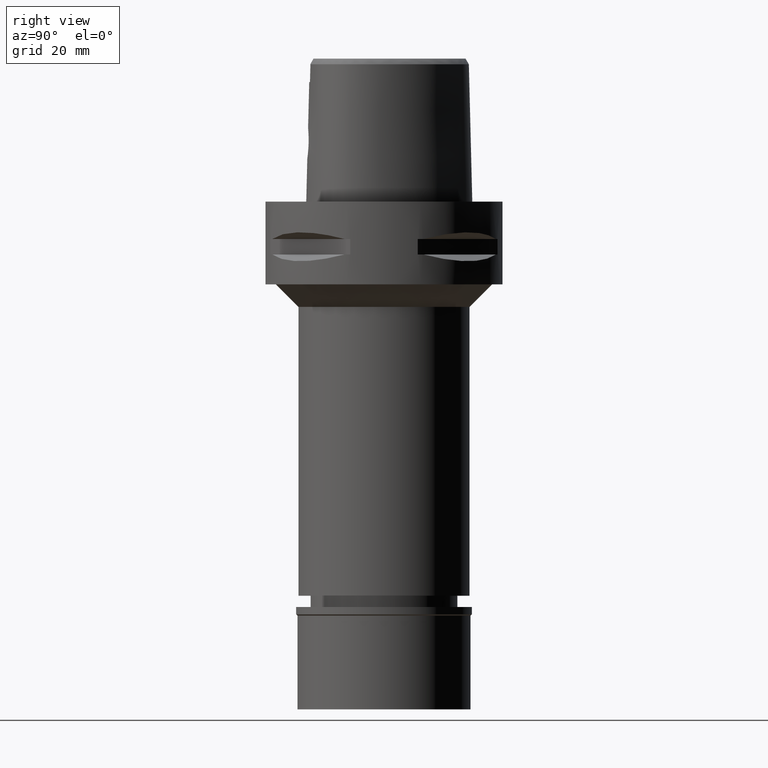
[diagram: clean part render]
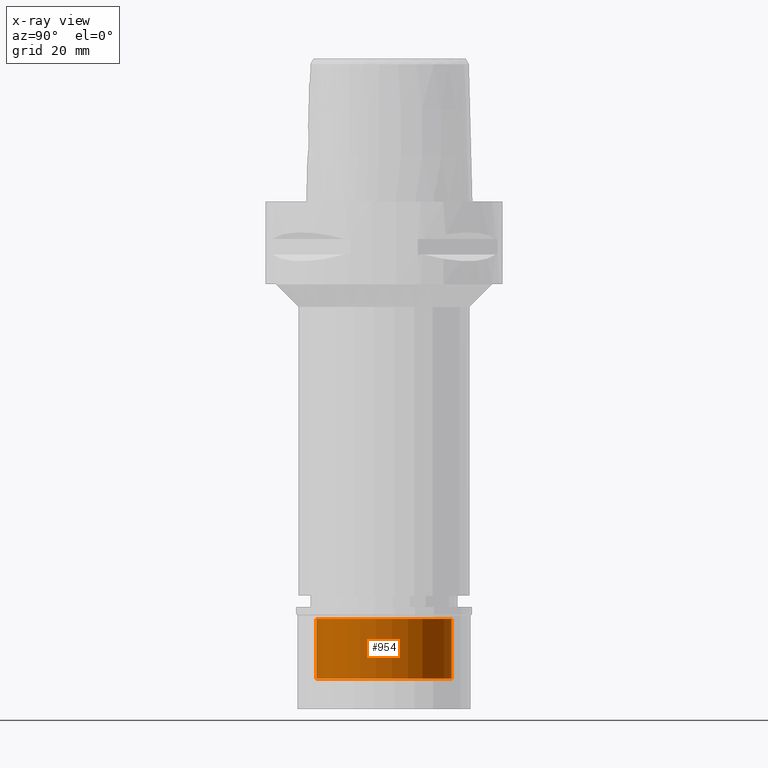
[diagram: x-ray — body ghosted, one internal face saturated and labeled with its STEP entity id]
A machine part, right view, then the same camera in x-ray: the body is ghosted and one INTERNAL B-rep face — a face not visible from any outside direction — is saturated and labeled: STEP entity #954.
In plain terms, the highlighted cylindrical surface (partial cylindrical patch) has radius 18 mm, axis along (0, 0, -1).
Its self-contained STEP definition (entity closure, byte-faithful):
#120 = CARTESIAN_POINT ( 'NONE',  ( 0.0000000000000000000, 18.00000000000000000, -19.00000000000000000 ) ) ;
#153 = DIRECTION ( 'NONE',  ( 0.0000000000000000000, 0.0000000000000000000, -1.000000000000000000 ) ) ;
#375 = EDGE_CURVE ( 'NONE', #4694, #3890, #2439, .T. ) ;
#433 = EDGE_CURVE ( 'NONE', #1081, #1739, #1685, .T. ) ;
#635 = DIRECTION ( 'NONE',  ( 0.0000000000000000000, -1.000000000000000000, 0.0000000000000000000 ) ) ;
#657 = EDGE_CURVE ( 'NONE', #3890, #1739, #1434, .T. ) ;
#804 = AXIS2_PLACEMENT_3D ( 'NONE', #1036, #153, #4734 ) ;
#835 = ORIENTED_EDGE ( 'NONE', *, *, #375, .T. ) ;
#954 = ADVANCED_FACE ( 'NONE', ( #4095 ), #1010, .F. ) ;
#983 = CARTESIAN_POINT ( 'NONE',  ( 0.0000000000000000000, 0.0000000000000000000, 0.0000000000000000000 ) ) ;
#1010 = CYLINDRICAL_SURFACE ( 'NONE', #1211, 18.00000000000000000 ) ;
#1036 = CARTESIAN_POINT ( 'NONE',  ( 0.0000000000000000000, 0.0000000000000000000, -19.00000000000000000 ) ) ;
#1081 = VERTEX_POINT ( 'NONE', #120 ) ;
#1205 = VECTOR ( 'NONE', #1246, 1000.000000000000000 ) ;
#1211 = AXIS2_PLACEMENT_3D ( 'NONE', #983, #4774, #635 ) ;
#1246 = DIRECTION ( 'NONE',  ( 0.0000000000000000000, 0.0000000000000000000, 1.000000000000000000 ) ) ;
#1434 = CIRCLE ( 'NONE', #3677, 18.00000000000000000 ) ;
#1659 = CARTESIAN_POINT ( 'NONE',  ( 0.0000000000000000000, 18.00000000000000000, -19.00000000000000000 ) ) ;
#1685 = LINE ( 'NONE', #1659, #1205 ) ;
#1739 = VERTEX_POINT ( 'NONE', #2423 ) ;
#1831 = VECTOR ( 'NONE', #4329, 1000.000000000000000 ) ;
#2423 = CARTESIAN_POINT ( 'NONE',  ( 0.0000000000000000000, 18.00000000000000000, -3.200000000000000178 ) ) ;
#2439 = LINE ( 'NONE', #2483, #1831 ) ;
#2453 = ORIENTED_EDGE ( 'NONE', *, *, #433, .F. ) ;
#2483 = CARTESIAN_POINT ( 'NONE',  ( 0.0000000000000000000, -18.00000000000000000, -19.00000000000000000 ) ) ;
#2514 = CARTESIAN_POINT ( 'NONE',  ( 0.0000000000000000000, 0.0000000000000000000, -3.200000000000000178 ) ) ;
#2717 = EDGE_CURVE ( 'NONE', #1081, #4694, #2958, .T. ) ;
#2958 = CIRCLE ( 'NONE', #804, 18.00000000000000000 ) ;
#3200 = EDGE_LOOP ( 'NONE', ( #3623, #835, #3243, #2453 ) ) ;
#3243 = ORIENTED_EDGE ( 'NONE', *, *, #657, .T. ) ;
#3254 = CARTESIAN_POINT ( 'NONE',  ( 0.0000000000000000000, -18.00000000000000000, -3.200000000000000178 ) ) ;
#3623 = ORIENTED_EDGE ( 'NONE', *, *, #2717, .T. ) ;
#3677 = AXIS2_PLACEMENT_3D ( 'NONE', #2514, #4398, #3726 ) ;
#3726 = DIRECTION ( 'NONE',  ( 0.0000000000000000000, -1.000000000000000000, 0.0000000000000000000 ) ) ;
#3890 = VERTEX_POINT ( 'NONE', #3254 ) ;
#4095 = FACE_OUTER_BOUND ( 'NONE', #3200, .T. ) ;
#4329 = DIRECTION ( 'NONE',  ( 0.0000000000000000000, 0.0000000000000000000, 1.000000000000000000 ) ) ;
#4398 = DIRECTION ( 'NONE',  ( 0.0000000000000000000, 0.0000000000000000000, 1.000000000000000000 ) ) ;
#4694 = VERTEX_POINT ( 'NONE', #4843 ) ;
#4734 = DIRECTION ( 'NONE',  ( 0.0000000000000000000, 1.000000000000000000, 0.0000000000000000000 ) ) ;
#4774 = DIRECTION ( 'NONE',  ( 0.0000000000000000000, 0.0000000000000000000, -1.000000000000000000 ) ) ;
#4843 = CARTESIAN_POINT ( 'NONE',  ( 0.0000000000000000000, -18.00000000000000000, -19.00000000000000000 ) ) ;